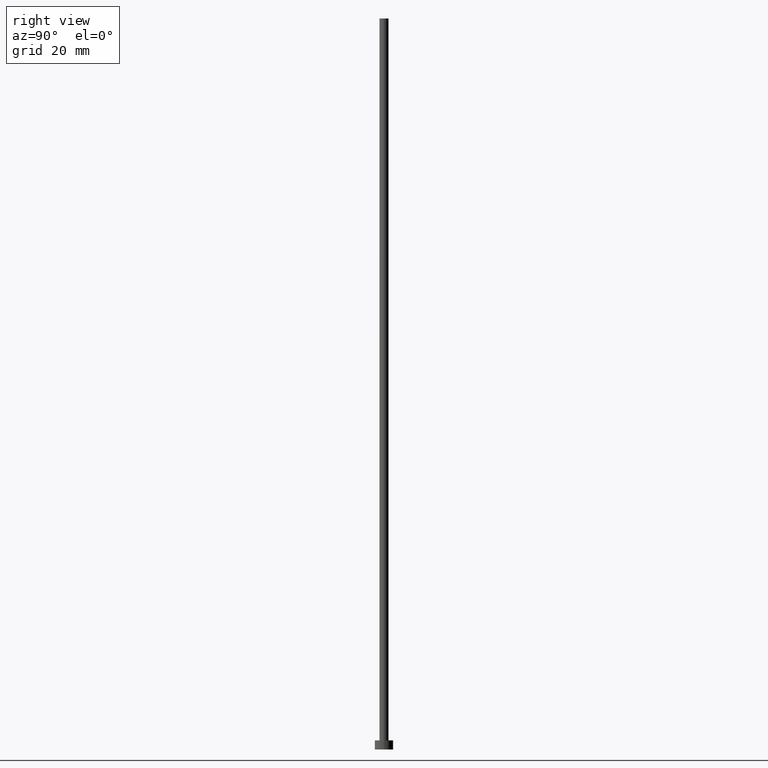
[diagram: clean part render]
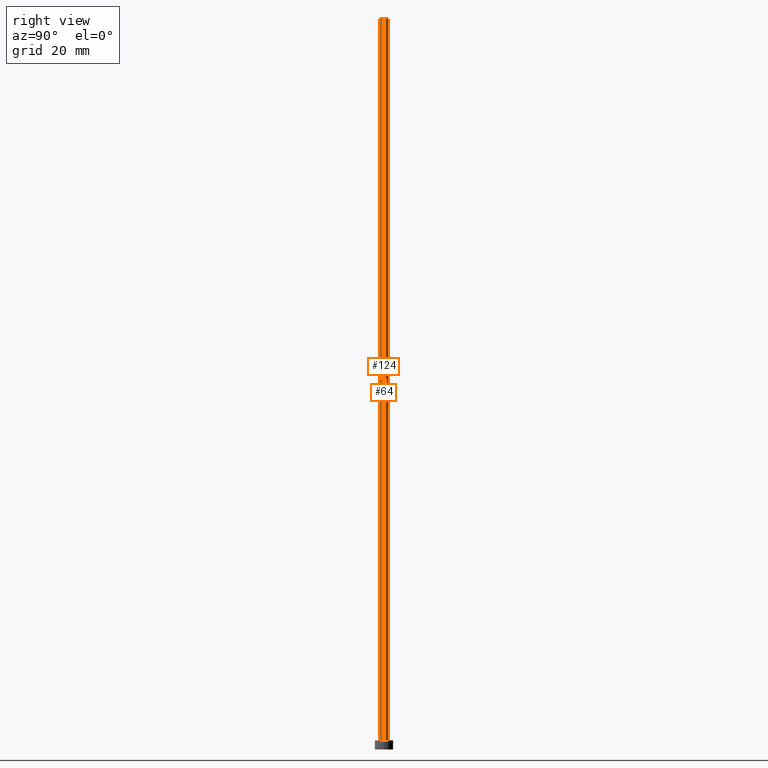
[diagram: same view with one multi-face feature highlighted, each face labeled with its STEP entity id]
A machine part, right view. The highlighted faces form ONE feature: a constant-radius fillet chain: 2 tangent blend faces with common blend radius 1 mm. The faces share edges in the B-rep.
Their STEP definitions:
[1] entity #64 (Cylinder):
#1 = CIRCLE ( 'NONE', #245, 1.000000000000000000 ) ;
#9 = CARTESIAN_POINT ( 'NONE',  ( -1.000000000000000000, 0.000000000000000000, 160.0000000000000000 ) ) ;
#11 = EDGE_LOOP ( 'NONE', ( #194, #174, #53, #210 ) ) ;
#22 = DIRECTION ( 'NONE',  ( 0.000000000000000000, 0.000000000000000000, 1.000000000000000000 ) ) ;
#42 = AXIS2_PLACEMENT_3D ( 'NONE', #253, #111, #59 ) ;
#53 = ORIENTED_EDGE ( 'NONE', *, *, #251, .T. ) ;
#55 = CARTESIAN_POINT ( 'NONE',  ( 0.000000000000000000, 0.000000000000000000, 160.0000000000000000 ) ) ;
#59 = DIRECTION ( 'NONE',  ( 1.000000000000000000, 0.000000000000000000, 0.000000000000000000 ) ) ;
#61 = CARTESIAN_POINT ( 'NONE',  ( -1.000000000000000000, 0.000000000000000000, 2.000000000000000000 ) ) ;
#64 = ADVANCED_FACE ( 'NONE', ( #173 ), #179, .T. ) ;
#85 = CARTESIAN_POINT ( 'NONE',  ( 0.000000000000000000, 0.000000000000000000, 160.0000000000000000 ) ) ;
#86 = CARTESIAN_POINT ( 'NONE',  ( 1.000000000000000000, 1.224646799147353207E-16, 160.0000000000000000 ) ) ;
#88 = VECTOR ( 'NONE', #236, 1000.000000000000000 ) ;
#93 = CIRCLE ( 'NONE', #42, 1.000000000000000000 ) ;
#94 = VERTEX_POINT ( 'NONE', #9 ) ;
#111 = DIRECTION ( 'NONE',  ( 0.000000000000000000, 0.000000000000000000, 1.000000000000000000 ) ) ;
#127 = DIRECTION ( 'NONE',  ( 1.000000000000000000, 0.000000000000000000, 0.000000000000000000 ) ) ;
#129 = DIRECTION ( 'NONE',  ( -0.000000000000000000, -0.000000000000000000, -1.000000000000000000 ) ) ;
#147 = AXIS2_PLACEMENT_3D ( 'NONE', #55, #247, #233 ) ;
#159 = EDGE_CURVE ( 'NONE', #178, #232, #162, .T. ) ;
#162 = LINE ( 'NONE', #219, #88 ) ;
#164 = LINE ( 'NONE', #235, #238 ) ;
#172 = EDGE_CURVE ( 'NONE', #178, #94, #1, .T. ) ;
#173 = FACE_OUTER_BOUND ( 'NONE', #11, .T. ) ;
#174 = ORIENTED_EDGE ( 'NONE', *, *, #159, .T. ) ;
#178 = VERTEX_POINT ( 'NONE', #86 ) ;
#179 = CYLINDRICAL_SURFACE ( 'NONE', #147, 1.000000000000000000 ) ;
#194 = ORIENTED_EDGE ( 'NONE', *, *, #172, .F. ) ;
#210 = ORIENTED_EDGE ( 'NONE', *, *, #225, .F. ) ;
#219 = CARTESIAN_POINT ( 'NONE',  ( 1.000000000000000000, 1.224646799147353207E-16, 160.0000000000000000 ) ) ;
#225 = EDGE_CURVE ( 'NONE', #94, #243, #164, .T. ) ;
#232 = VERTEX_POINT ( 'NONE', #255 ) ;
#233 = DIRECTION ( 'NONE',  ( -1.000000000000000000, 0.000000000000000000, 0.000000000000000000 ) ) ;
#235 = CARTESIAN_POINT ( 'NONE',  ( -1.000000000000000000, 0.000000000000000000, 160.0000000000000000 ) ) ;
#236 = DIRECTION ( 'NONE',  ( -0.000000000000000000, -0.000000000000000000, -1.000000000000000000 ) ) ;
#238 = VECTOR ( 'NONE', #129, 1000.000000000000000 ) ;
#243 = VERTEX_POINT ( 'NONE', #61 ) ;
#245 = AXIS2_PLACEMENT_3D ( 'NONE', #85, #22, #127 ) ;
#247 = DIRECTION ( 'NONE',  ( -0.000000000000000000, -0.000000000000000000, -1.000000000000000000 ) ) ;
#251 = EDGE_CURVE ( 'NONE', #232, #243, #93, .T. ) ;
#253 = CARTESIAN_POINT ( 'NONE',  ( 0.000000000000000000, 0.000000000000000000, 2.000000000000000000 ) ) ;
#255 = CARTESIAN_POINT ( 'NONE',  ( 1.000000000000000000, 1.224646799147353207E-16, 2.000000000000000000 ) ) ;
[2] entity #124 (Cylinder):
#9 = CARTESIAN_POINT ( 'NONE',  ( -1.000000000000000000, 0.000000000000000000, 160.0000000000000000 ) ) ;
#17 = CYLINDRICAL_SURFACE ( 'NONE', #201, 1.000000000000000000 ) ;
#27 = CIRCLE ( 'NONE', #60, 1.000000000000000000 ) ;
#28 = EDGE_LOOP ( 'NONE', ( #193, #198, #213, #76 ) ) ;
#31 = CIRCLE ( 'NONE', #79, 1.000000000000000000 ) ;
#36 = CARTESIAN_POINT ( 'NONE',  ( 0.000000000000000000, 0.000000000000000000, 2.000000000000000000 ) ) ;
#39 = DIRECTION ( 'NONE',  ( 1.000000000000000000, 0.000000000000000000, 0.000000000000000000 ) ) ;
#60 = AXIS2_PLACEMENT_3D ( 'NONE', #181, #200, #39 ) ;
#61 = CARTESIAN_POINT ( 'NONE',  ( -1.000000000000000000, 0.000000000000000000, 2.000000000000000000 ) ) ;
#76 = ORIENTED_EDGE ( 'NONE', *, *, #91, .T. ) ;
#77 = DIRECTION ( 'NONE',  ( 1.000000000000000000, 0.000000000000000000, 0.000000000000000000 ) ) ;
#79 = AXIS2_PLACEMENT_3D ( 'NONE', #36, #125, #77 ) ;
#82 = DIRECTION ( 'NONE',  ( -1.000000000000000000, 0.000000000000000000, 0.000000000000000000 ) ) ;
#86 = CARTESIAN_POINT ( 'NONE',  ( 1.000000000000000000, 1.224646799147353207E-16, 160.0000000000000000 ) ) ;
#88 = VECTOR ( 'NONE', #236, 1000.000000000000000 ) ;
#91 = EDGE_CURVE ( 'NONE', #243, #232, #31, .T. ) ;
#94 = VERTEX_POINT ( 'NONE', #9 ) ;
#124 = ADVANCED_FACE ( 'NONE', ( #234 ), #17, .T. ) ;
#125 = DIRECTION ( 'NONE',  ( 0.000000000000000000, 0.000000000000000000, 1.000000000000000000 ) ) ;
#126 = CARTESIAN_POINT ( 'NONE',  ( 0.000000000000000000, 0.000000000000000000, 160.0000000000000000 ) ) ;
#129 = DIRECTION ( 'NONE',  ( -0.000000000000000000, -0.000000000000000000, -1.000000000000000000 ) ) ;
#159 = EDGE_CURVE ( 'NONE', #178, #232, #162, .T. ) ;
#162 = LINE ( 'NONE', #219, #88 ) ;
#164 = LINE ( 'NONE', #235, #238 ) ;
#178 = VERTEX_POINT ( 'NONE', #86 ) ;
#181 = CARTESIAN_POINT ( 'NONE',  ( 0.000000000000000000, 0.000000000000000000, 160.0000000000000000 ) ) ;
#193 = ORIENTED_EDGE ( 'NONE', *, *, #159, .F. ) ;
#195 = EDGE_CURVE ( 'NONE', #94, #178, #27, .T. ) ;
#198 = ORIENTED_EDGE ( 'NONE', *, *, #195, .F. ) ;
#200 = DIRECTION ( 'NONE',  ( 0.000000000000000000, 0.000000000000000000, 1.000000000000000000 ) ) ;
#201 = AXIS2_PLACEMENT_3D ( 'NONE', #126, #221, #82 ) ;
#213 = ORIENTED_EDGE ( 'NONE', *, *, #225, .T. ) ;
#219 = CARTESIAN_POINT ( 'NONE',  ( 1.000000000000000000, 1.224646799147353207E-16, 160.0000000000000000 ) ) ;
#221 = DIRECTION ( 'NONE',  ( -0.000000000000000000, -0.000000000000000000, -1.000000000000000000 ) ) ;
#225 = EDGE_CURVE ( 'NONE', #94, #243, #164, .T. ) ;
#232 = VERTEX_POINT ( 'NONE', #255 ) ;
#234 = FACE_OUTER_BOUND ( 'NONE', #28, .T. ) ;
#235 = CARTESIAN_POINT ( 'NONE',  ( -1.000000000000000000, 0.000000000000000000, 160.0000000000000000 ) ) ;
#236 = DIRECTION ( 'NONE',  ( -0.000000000000000000, -0.000000000000000000, -1.000000000000000000 ) ) ;
#238 = VECTOR ( 'NONE', #129, 1000.000000000000000 ) ;
#243 = VERTEX_POINT ( 'NONE', #61 ) ;
#255 = CARTESIAN_POINT ( 'NONE',  ( 1.000000000000000000, 1.224646799147353207E-16, 2.000000000000000000 ) ) ;